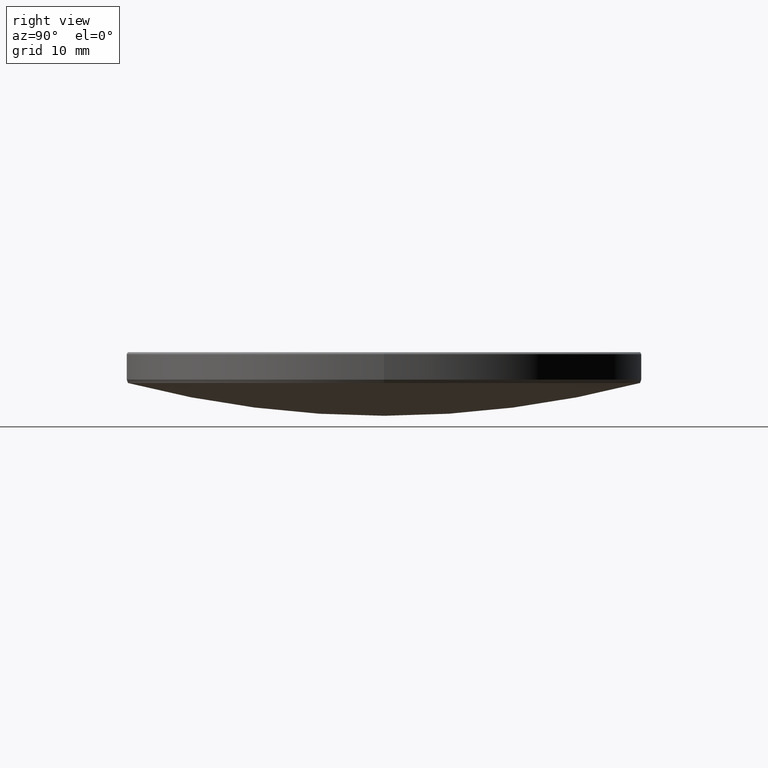
[diagram: clean part render]
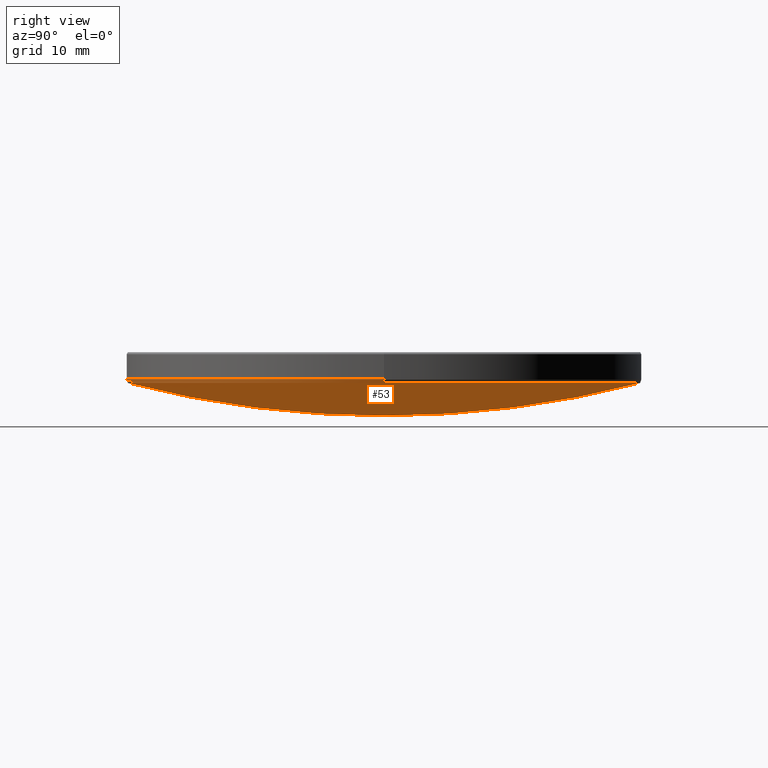
[diagram: same view with one face highlighted and labeled with its STEP entity id]
A machine part, right view. The second image highlights one B-rep face of the part: STEP entity #53.
In plain terms, the highlighted spherical surface has radius 100.08 mm.
Its self-contained STEP definition (entity closure, byte-faithful):
#9 = AXIS2_PLACEMENT_3D ( 'NONE', #208, #127, #180 ) ;
#13 = DIRECTION ( 'NONE',  ( 1.000000000000000000, -0.000000000000000000, 0.000000000000000000 ) ) ;
#18 = AXIS2_PLACEMENT_3D ( 'NONE', #258, #294, #161 ) ;
#25 = VERTEX_POINT ( 'NONE', #204 ) ;
#28 = CARTESIAN_POINT ( 'NONE',  ( 0.000000000000000000, 0.000000000000000000, 109.8031321807306142 ) ) ;
#45 = CARTESIAN_POINT ( 'NONE',  ( 0.000000000000000000, 6.128132582933356375E-15, 9.723132180730592822 ) ) ;
#49 = AXIS2_PLACEMENT_3D ( 'NONE', #28, #13, #228 ) ;
#53 = ADVANCED_FACE ( 'NONE', ( #83 ), #60, .T. ) ;
#54 = ORIENTED_EDGE ( 'NONE', *, *, #70, .T. ) ;
#57 = VERTEX_POINT ( 'NONE', #206 ) ;
#60 = SPHERICAL_SURFACE ( 'NONE', #18, 100.0800000000000125 ) ;
#64 = AXIS2_PLACEMENT_3D ( 'NONE', #118, #213, #138 ) ;
#70 = EDGE_CURVE ( 'NONE', #328, #78, #184, .T. ) ;
#73 = ORIENTED_EDGE ( 'NONE', *, *, #226, .F. ) ;
#78 = VERTEX_POINT ( 'NONE', #153 ) ;
#83 = FACE_OUTER_BOUND ( 'NONE', #223, .T. ) ;
#87 = AXIS2_PLACEMENT_3D ( 'NONE', #209, #300, #299 ) ;
#118 = CARTESIAN_POINT ( 'NONE',  ( 0.000000000000000000, 0.000000000000000000, 12.94948413701273182 ) ) ;
#127 = DIRECTION ( 'NONE',  ( -1.000000000000000000, 1.224646799147353207E-16, 0.000000000000000000 ) ) ;
#129 = EDGE_CURVE ( 'NONE', #78, #57, #169, .T. ) ;
#138 = DIRECTION ( 'NONE',  ( 1.000000000000000000, 0.000000000000000000, 0.000000000000000000 ) ) ;
#153 = CARTESIAN_POINT ( 'NONE',  ( 0.000000000000000000, 25.20669079081240582, 12.94948413701272472 ) ) ;
#161 = DIRECTION ( 'NONE',  ( 0.000000000000000000, 1.000000000000000000, 0.000000000000000000 ) ) ;
#169 = CIRCLE ( 'NONE', #87, 25.20669079081241648 ) ;
#177 = EDGE_CURVE ( 'NONE', #57, #25, #211, .T. ) ;
#180 = DIRECTION ( 'NONE',  ( -1.224646799147353207E-16, -1.000000000000000000, 0.000000000000000000 ) ) ;
#184 = CIRCLE ( 'NONE', #49, 100.0800000000000125 ) ;
#200 = ORIENTED_EDGE ( 'NONE', *, *, #129, .T. ) ;
#204 = CARTESIAN_POINT ( 'NONE',  ( -3.086929319406547016E-15, -25.20669079081240582, 12.94948413701272472 ) ) ;
#206 = CARTESIAN_POINT ( 'NONE',  ( 25.20669079081242003, 0.000000000000000000, 12.94948413701273182 ) ) ;
#208 = CARTESIAN_POINT ( 'NONE',  ( 0.000000000000000000, 0.000000000000000000, 109.8031321807306142 ) ) ;
#209 = CARTESIAN_POINT ( 'NONE',  ( 0.000000000000000000, 0.000000000000000000, 12.94948413701273182 ) ) ;
#211 = CIRCLE ( 'NONE', #64, 25.20669079081241648 ) ;
#213 = DIRECTION ( 'NONE',  ( 0.000000000000000000, 0.000000000000000000, -1.000000000000000000 ) ) ;
#223 = EDGE_LOOP ( 'NONE', ( #73, #54, #200, #307 ) ) ;
#226 = EDGE_CURVE ( 'NONE', #328, #25, #284, .T. ) ;
#228 = DIRECTION ( 'NONE',  ( 0.000000000000000000, 0.000000000000000000, -1.000000000000000000 ) ) ;
#258 = CARTESIAN_POINT ( 'NONE',  ( 0.000000000000000000, 0.000000000000000000, 109.8031321807306142 ) ) ;
#284 = CIRCLE ( 'NONE', #9, 100.0800000000000125 ) ;
#294 = DIRECTION ( 'NONE',  ( -1.000000000000000000, 0.000000000000000000, 0.000000000000000000 ) ) ;
#299 = DIRECTION ( 'NONE',  ( 1.000000000000000000, 0.000000000000000000, 0.000000000000000000 ) ) ;
#300 = DIRECTION ( 'NONE',  ( 0.000000000000000000, 0.000000000000000000, -1.000000000000000000 ) ) ;
#307 = ORIENTED_EDGE ( 'NONE', *, *, #177, .T. ) ;
#328 = VERTEX_POINT ( 'NONE', #45 ) ;